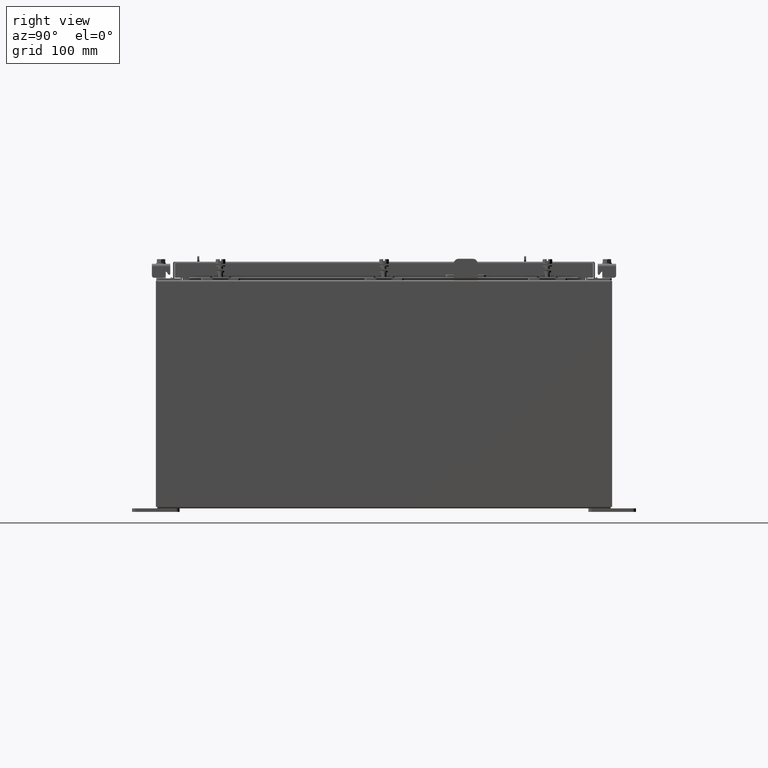
[diagram: clean part render]
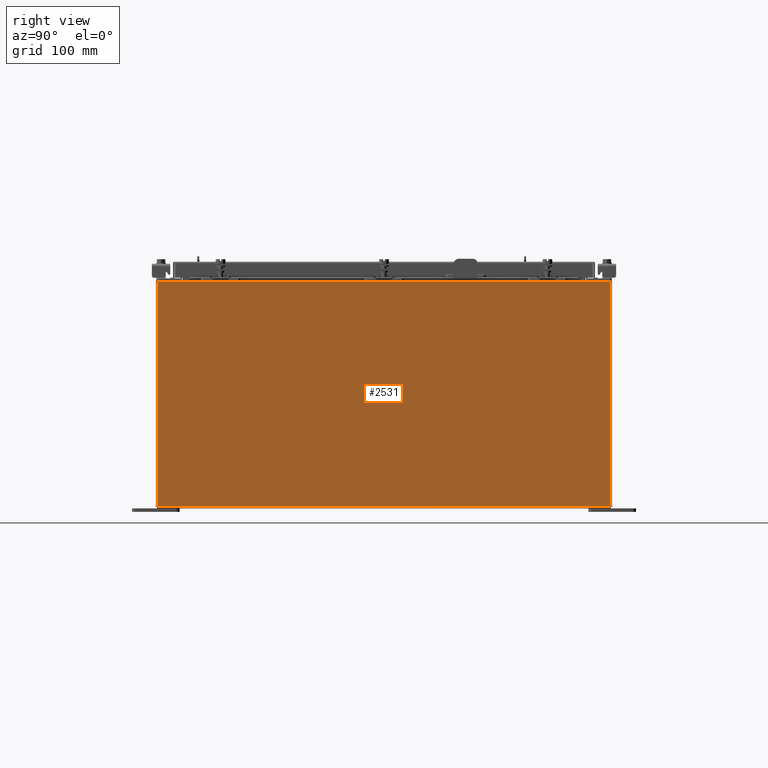
[diagram: same view with one face highlighted and labeled with its STEP entity id]
A machine part, right view. The second image highlights one B-rep face of the part: STEP entity #2531.
In plain terms, the highlighted planar face has unit normal (-1, 0, 0).
Its self-contained STEP definition (entity closure, byte-faithful):
#488 = DIRECTION ( 'NONE',  ( 3.482016343714355500E-015, -1.832640180902292400E-016, 1.000000000000000000 ) ) ;
#1184 = VECTOR ( 'NONE', #21801, 39.37007874015748100 ) ;
#1336 = PLANE ( 'NONE',  #17079 ) ;
#1848 = EDGE_CURVE ( 'NONE', #16773, #7422, #13350, .T. ) ;
#2232 = CARTESIAN_POINT ( 'NONE',  ( 11.99999999999999800, 11.92529999999999800, -3.985953138565242700E-014 ) ) ;
#2284 = VECTOR ( 'NONE', #8576, 39.37007874015748100 ) ;
#2452 = ORIENTED_EDGE ( 'NONE', *, *, #5683, .F. ) ;
#2531 = ADVANCED_FACE ( 'NONE', ( #14683 ), #1336, .F. ) ;
#3067 = CARTESIAN_POINT ( 'NONE',  ( 11.99999999999999800, 11.92529999999999600, 0.01299999999999984700 ) ) ;
#4853 = DIRECTION ( 'NONE',  ( -1.000000000000000000, 0.0000000000000000000, 3.482016343714355100E-015 ) ) ;
#5236 = CARTESIAN_POINT ( 'NONE',  ( 12.00000000000004100, -11.92530000000000400, 11.83760000000000000 ) ) ;
#5683 = EDGE_CURVE ( 'NONE', #10507, #17966, #9901, .T. ) ;
#7243 = DIRECTION ( 'NONE',  ( -0.0000000000000000000, -1.000000000000000000, -0.0000000000000000000 ) ) ;
#7422 = VERTEX_POINT ( 'NONE', #5236 ) ;
#8437 = ORIENTED_EDGE ( 'NONE', *, *, #1848, .T. ) ;
#8576 = DIRECTION ( 'NONE',  ( -3.482016343714355500E-015, 0.0000000000000000000, -1.000000000000000000 ) ) ;
#9584 = CARTESIAN_POINT ( 'NONE',  ( 11.99999999999999800, -11.92530000000000400, 0.01299999999999984700 ) ) ;
#9901 = LINE ( 'NONE', #9584, #1184 ) ;
#10507 = VERTEX_POINT ( 'NONE', #3067 ) ;
#10993 = LINE ( 'NONE', #12067, #2284 ) ;
#11904 = EDGE_CURVE ( 'NONE', #7422, #17966, #10993, .T. ) ;
#12067 = CARTESIAN_POINT ( 'NONE',  ( 11.99999999999999800, -11.92530000000000400, -4.204500978058384000E-014 ) ) ;
#12277 = VECTOR ( 'NONE', #7243, 39.37007874015748100 ) ;
#12392 = CARTESIAN_POINT ( 'NONE',  ( 12.00000000000004100, 11.92529999999999800, 11.83760000000000000 ) ) ;
#13350 = LINE ( 'NONE', #12392, #12277 ) ;
#13844 = VECTOR ( 'NONE', #488, 39.37007874015748100 ) ;
#14045 = CARTESIAN_POINT ( 'NONE',  ( 11.99999999999999800, -11.92530000000000400, 0.01299999999999984700 ) ) ;
#14683 = FACE_OUTER_BOUND ( 'NONE', #19489, .T. ) ;
#15258 = CARTESIAN_POINT ( 'NONE',  ( 11.99999999999999800, 0.0000000000000000000, -4.204500978058384000E-014 ) ) ;
#16104 = ORIENTED_EDGE ( 'NONE', *, *, #11904, .T. ) ;
#16773 = VERTEX_POINT ( 'NONE', #21506 ) ;
#17028 = DIRECTION ( 'NONE',  ( 3.482016343714355100E-015, 0.0000000000000000000, 1.000000000000000000 ) ) ;
#17079 = AXIS2_PLACEMENT_3D ( 'NONE', #15258, #4853, #17028 ) ;
#17966 = VERTEX_POINT ( 'NONE', #14045 ) ;
#18388 = ORIENTED_EDGE ( 'NONE', *, *, #21133, .T. ) ;
#18490 = LINE ( 'NONE', #2232, #13844 ) ;
#19489 = EDGE_LOOP ( 'NONE', ( #8437, #16104, #2452, #18388 ) ) ;
#21133 = EDGE_CURVE ( 'NONE', #10507, #16773, #18490, .T. ) ;
#21506 = CARTESIAN_POINT ( 'NONE',  ( 12.00000000000004100, 11.92529999999999600, 11.83760000000000000 ) ) ;
#21801 = DIRECTION ( 'NONE',  ( -0.0000000000000000000, -1.000000000000000000, -0.0000000000000000000 ) ) ;